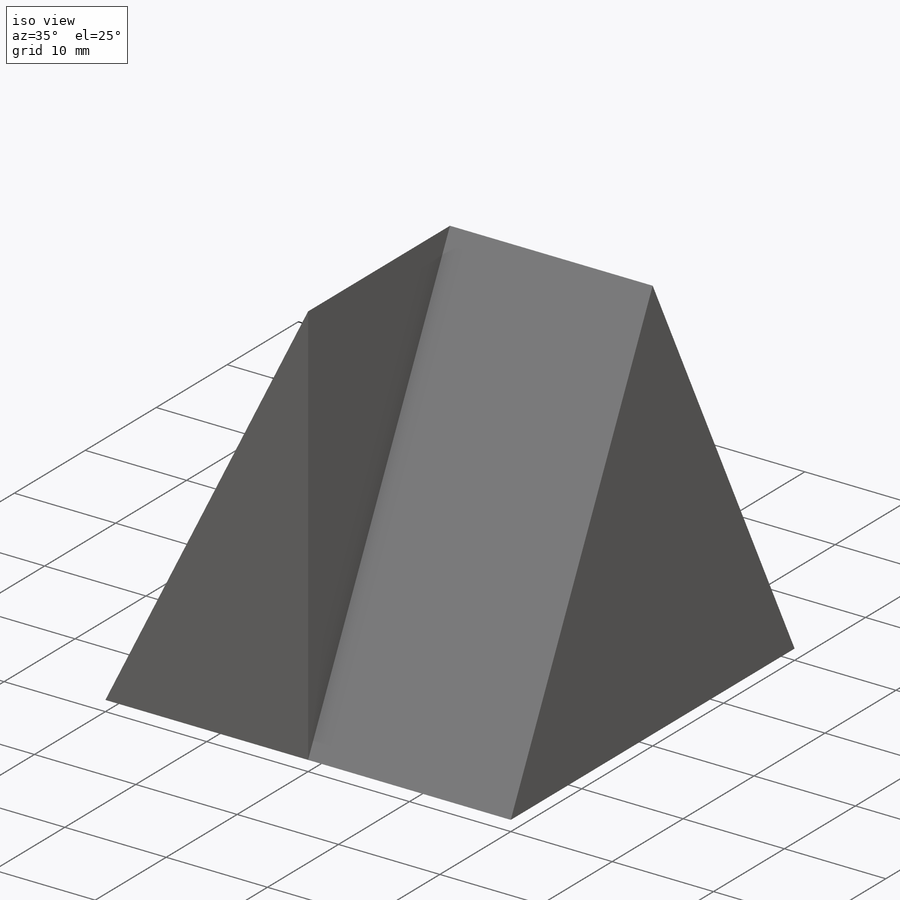
[diagram: iso view]
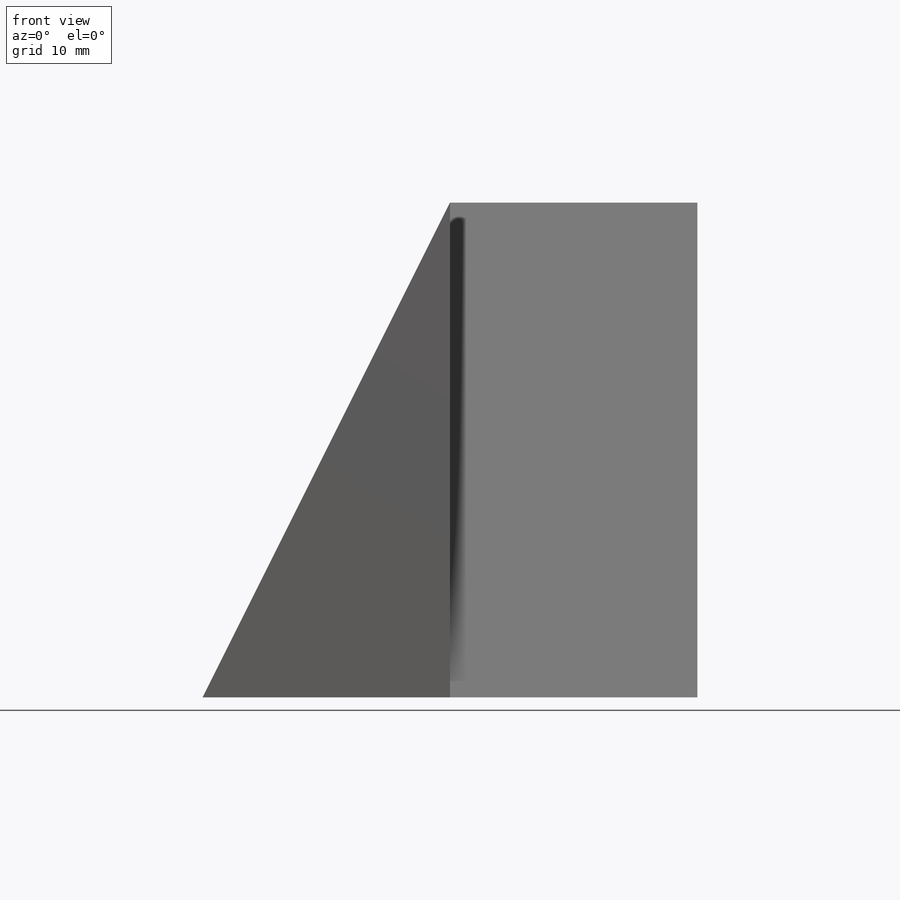
[diagram: front view]
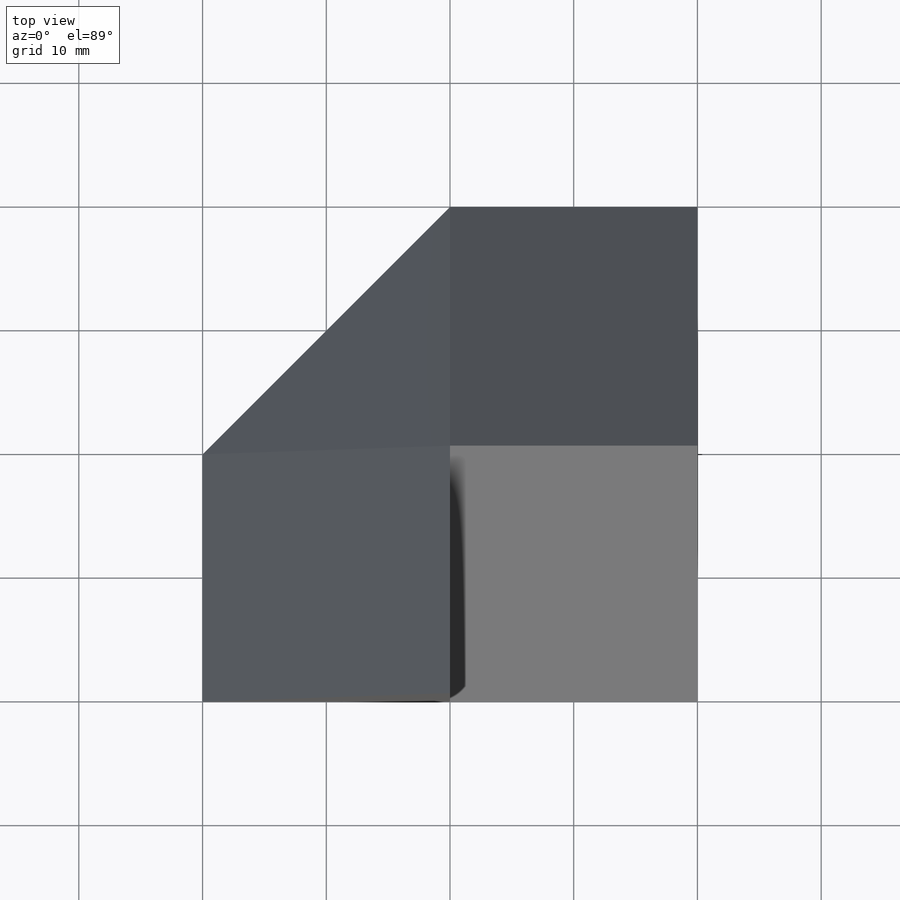
[diagram: top view]
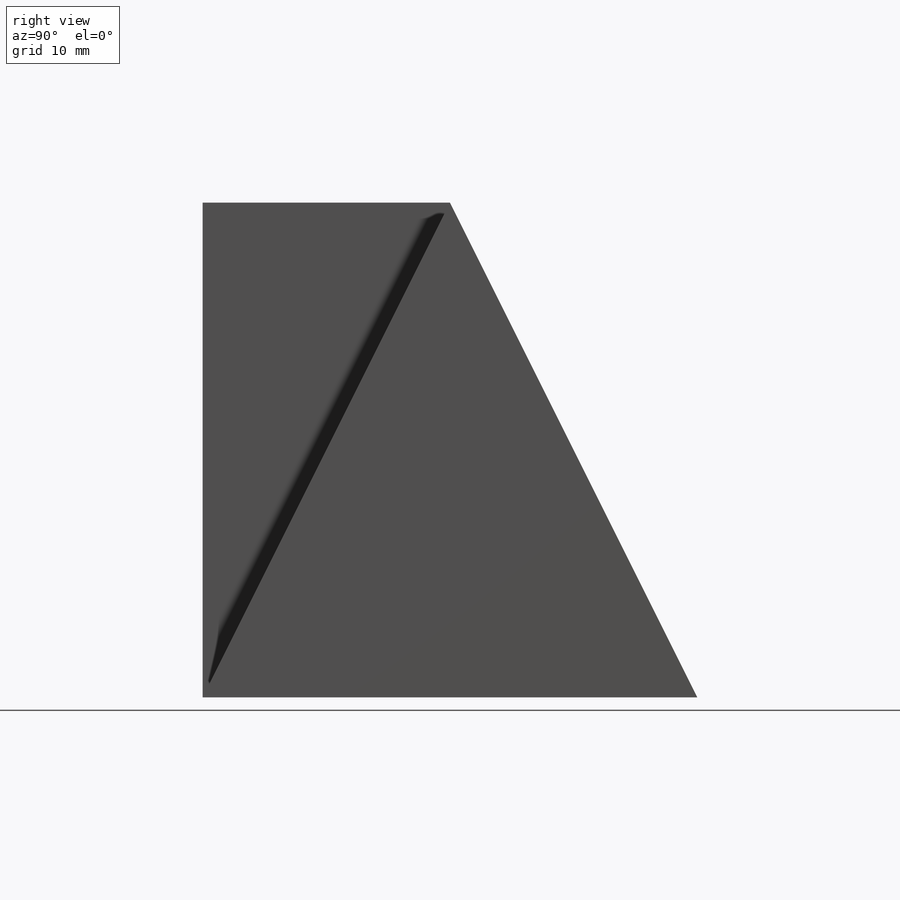
[diagram: right view]
SOLIDWORKS PART (.sldprt)
format: sldprt  version: not decoded by parser v0  size: 343,040 bytes
history: native  units: mm
features: sketch x21, cut_extrude x17, extrude x4, material x1, plane x1 (+13 scaffold rows collapsed)
feature tree (57):
  scaffold x13  (default folders/planes/origin — collapsed)
  material  "Material <not specified>"
  sketch  "Sketch1"  dims[D1=40.0mm D2=40.0mm]
  extrude  "Boss-Extrude1"  Depth=40mm
  sketch  "Sketch2"
  cut_extrude  "Cut-Extrude1"  Depth=40mm
  sketch  "Sketch3"
  cut_extrude  "Cut-Extrude2"  Depth=40mm
  sketch  "Sketch5"
  cut_extrude  "Cut-Extrude5"  Depth=20mm
  plane  "Plane1"
  sketch  "Sketch6"
  cut_extrude  "Cut-Extrude6"  Depth=20mm
  sketch  "Sketch7"
  cut_extrude  "Cut-Extrude7"  Depth=20mm
  sketch  "Sketch8"
  cut_extrude  "Cut-Extrude8"  Depth=20mm
  sketch  "Sketch9"
  cut_extrude  "Cut-Extrude9"  Depth=20mm
  sketch  "Sketch10"
  cut_extrude  "Cut-Extrude10"  Depth=20mm
  sketch  "Sketch11"
  cut_extrude  "Cut-Extrude11"  Depth=20mm
  sketch  "Sketch12"
  cut_extrude  "Cut-Extrude12"  Depth=20mm
  sketch  "Sketch15"
  cut_extrude  "Cut-Extrude17"  Depth=20mm
  sketch  "Sketch16"
  cut_extrude  "Cut-Extrude18"  Depth=7mm
  sketch  "Sketch20"
  extrude  "Boss-Extrude6"  Depth=7mm
  sketch  "Sketch21"
  cut_extrude  "Cut-Extrude20"  Depth=20mm
  sketch  "Sketch22"
  extrude  "Boss-Extrude7"  Depth=2mm
  sketch  "Sketch23"
  cut_extrude  "Cut-Extrude21"  Depth=2mm
  sketch  "Sketch24"
  cut_extrude  "Cut-Extrude22"  Depth=20mm
  sketch  "Sketch25"
  extrude  "Boss-Extrude8"  Depth=5mm
  sketch  "Sketch26"
  cut_extrude  "Cut-Extrude23"  Depth=5mm
  sketch  "Sketch27"
  cut_extrude  "Cut-Extrude24"  Depth=5mm
decode coverage: 22 of 42 modeling features carry decoded parameters
note: suppression state not decoded; provenance and decode notes live in map.json
